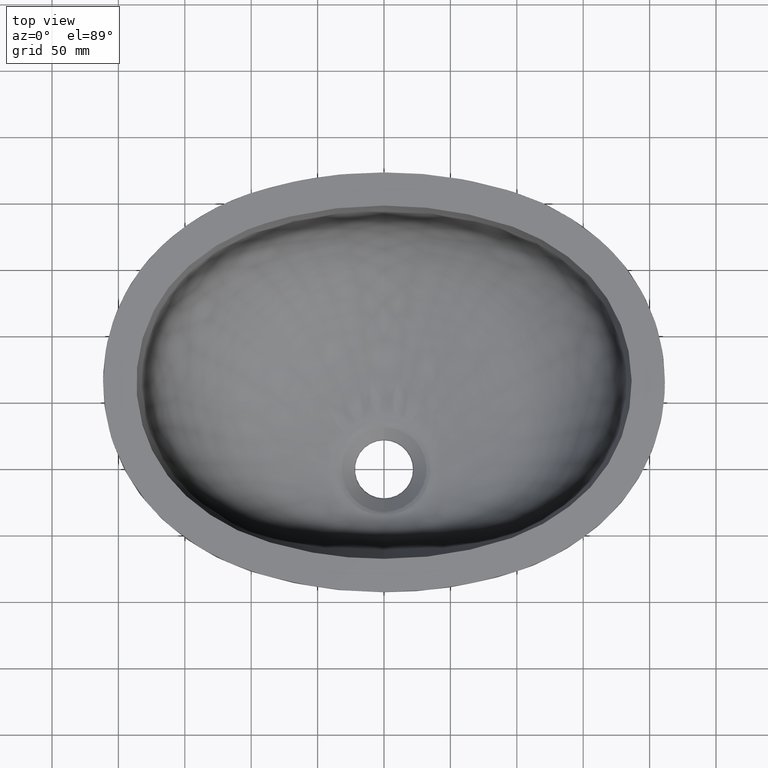
[diagram: clean part render]
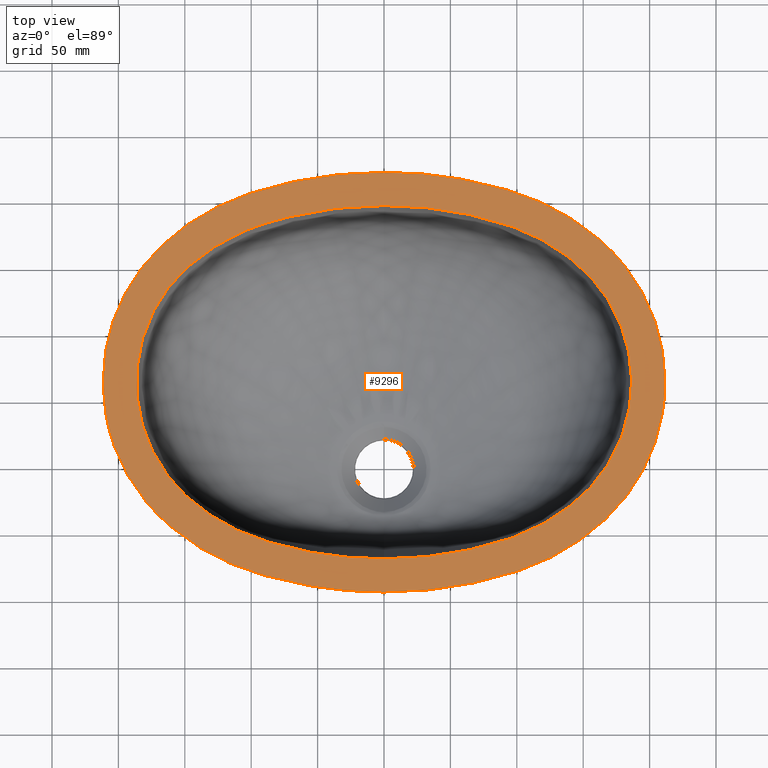
[diagram: same view with one face highlighted and labeled with its STEP entity id]
A machine part, top view. The second image highlights one B-rep face of the part: STEP entity #9296.
In plain terms, the highlighted planar face has unit normal (0, 0, -1).
Its self-contained STEP definition (entity closure, byte-faithful):
#14 = CARTESIAN_POINT ( 'NONE',  ( 141.8134164194811100, 185.6934564959157400, 139.0000000000000000 ) ) ;
#25 = CARTESIAN_POINT ( 'NONE',  ( -141.0980006799006200, 186.1517024431765600, 139.0000000000000000 ) ) ;
#44 = CARTESIAN_POINT ( 'NONE',  ( -235.5397353722347900, 63.46720191600246600, 139.0000000000000000 ) ) ;
#52 = CARTESIAN_POINT ( 'NONE',  ( 113.8014037228477500, 200.3979942582082900, 139.0000000000000600 ) ) ;
#63 = CARTESIAN_POINT ( 'NONE',  ( -51.80421030263410400, 217.1405875236715700, 139.0000000000000300 ) ) ;
#137 = CARTESIAN_POINT ( 'NONE',  ( -108.2375812038779100, 202.5971811981956400, 138.9999999999999400 ) ) ;
#177 = ORIENTED_EDGE ( 'NONE', *, *, #8405, .T. ) ;
#207 = CARTESIAN_POINT ( 'NONE',  ( 108.8211774104020600, 202.3740298353033600, 139.0000000000000000 ) ) ;
#216 = CARTESIAN_POINT ( 'NONE',  ( -207.0094311776198300, 27.74783621377445900, 139.0000000000000000 ) ) ;
#252 = CARTESIAN_POINT ( 'NONE',  ( -189.7697833938073900, 138.5806716896760800, 138.9999999999999400 ) ) ;
#270 = CARTESIAN_POINT ( 'NONE',  ( 104.5709587466795100, -51.11716522922829100, 138.9999999999999400 ) ) ;
#285 = CARTESIAN_POINT ( 'NONE',  ( -146.4548949164134500, -56.53928594062419700, 139.0000000000000300 ) ) ;
#304 = CARTESIAN_POINT ( 'NONE',  ( 184.6311295948306100, 42.23830943594445800, 139.0000000000000300 ) ) ;
#320 = CARTESIAN_POINT ( 'NONE',  ( -210.9582475368949000, 48.28391470857069800, 139.0000000000000300 ) ) ;
#328 = CARTESIAN_POINT ( 'NONE',  ( -167.8413683892211700, 126.4645927509965600, 139.0000000000000300 ) ) ;
#340 = CARTESIAN_POINT ( 'NONE',  ( 91.98169013250493700, -55.77286515180630700, 139.0000000000000300 ) ) ;
#354 = CARTESIAN_POINT ( 'NONE',  ( -118.6613527595336600, -72.26575017416591600, 139.0000000000000000 ) ) ;
#362 = CARTESIAN_POINT ( 'NONE',  ( -84.06807760853958200, 184.2397239878616500, 138.9999999999999700 ) ) ;
#374 = CARTESIAN_POINT ( 'NONE',  ( 141.1838978360408700, -29.32937752605776900, 139.0000000000000300 ) ) ;
#389 = CARTESIAN_POINT ( 'NONE',  ( -103.6298229623216100, -78.31321714575936700, 139.0000000000000000 ) ) ;
#397 = CARTESIAN_POINT ( 'NONE',  ( -91.75725502482508500, 181.8817257741589200, 138.9999999999999400 ) ) ;
#411 = CARTESIAN_POINT ( 'NONE',  ( 53.29197455235970400, -65.61500751463303500, 139.0000000000000000 ) ) ;
#426 = CARTESIAN_POINT ( 'NONE',  ( -74.12893359391938500, -86.64713934944570900, 139.0000000000000000 ) ) ;
#433 = CARTESIAN_POINT ( 'NONE',  ( -118.6950777516234200, 170.4574448304686900, 139.0000000000000000 ) ) ;
#446 = CARTESIAN_POINT ( 'NONE',  ( 100.2468486844240100, 178.8943053326980000, 138.9999999999999400 ) ) ;
#467 = CARTESIAN_POINT ( 'NONE',  ( -73.99341860991832200, -61.00047033267231500, 139.0000000000000300 ) ) ;
#502 = CARTESIAN_POINT ( 'NONE',  ( -163.4702581478323100, -6.598483293071597100, 139.0000000000000000 ) ) ;
#513 = CARTESIAN_POINT ( 'NONE',  ( 42.39715067249979100, 193.3514921600761300, 139.0000000000000000 ) ) ;
#535 = CARTESIAN_POINT ( 'NONE',  ( -184.5471081795159900, 84.57808323815329700, 139.0000000000000000 ) ) ;
#547 = CARTESIAN_POINT ( 'NONE',  ( 177.6792728316464400, 107.7721870648342400, 139.0000000000000900 ) ) ;
#570 = CARTESIAN_POINT ( 'NONE',  ( -182.7736774008190300, 92.45975015035718100, 139.0000000000000300 ) ) ;
#607 = CARTESIAN_POINT ( 'NONE',  ( -96.88541963945579000, -54.12082279872024800, 139.0000000000000600 ) ) ;
#634 = CARTESIAN_POINT ( 'NONE',  ( 113.9440679903746200, -74.38510314623799500, 138.9999999999999700 ) ) ;
#667 = CARTESIAN_POINT ( 'NONE',  ( 62.28097968953528600, -89.20378139231240800, 139.0000000000000600 ) ) ;
#705 = CARTESIAN_POINT ( 'NONE',  ( 108.1219301276107000, -76.59439646301274300, 139.0000000000000300 ) ) ;
#743 = CARTESIAN_POINT ( 'NONE',  ( 198.0388837846426500, 123.6465736449599400, 139.0000000000000600 ) ) ;
#775 = CARTESIAN_POINT ( 'NONE',  ( -0.1188837530130837100, -94.99972735600290700, 139.0000000000000000 ) ) ;
#782 = CARTESIAN_POINT ( 'NONE',  ( 192.0718588196502900, -8.553439690658825300, 139.0000000000000000 ) ) ;
#824 = CARTESIAN_POINT ( 'NONE',  ( 142.0748136758999700, 185.5253491278705000, 139.0000000000000000 ) ) ;
#867 = CARTESIAN_POINT ( 'NONE',  ( 136.5500623196737700, 189.0714910554585500, 139.0000000000000600 ) ) ;
#879 = CARTESIAN_POINT ( 'NONE',  ( -141.1168040537991400, 186.1397481332255400, 139.0000000000000000 ) ) ;
#908 = CARTESIAN_POINT ( 'NONE',  ( 109.4075489926839600, 202.1489537408108700, 139.0000000000000000 ) ) ;
#918 = CARTESIAN_POINT ( 'NONE',  ( -72.53969795962767400, 213.0288973423084000, 139.0000000000000300 ) ) ;
#997 = CARTESIAN_POINT ( 'NONE',  ( -72.70368240779026800, 212.9915109307170600, 139.0000000000000300 ) ) ;
#1036 = CARTESIAN_POINT ( 'NONE',  ( -70.24295181148637800, 213.5444462426563600, 139.0000000000000600 ) ) ;
#1063 = CARTESIAN_POINT ( 'NONE',  ( 73.47070068155795800, 212.8144068011342800, 139.0000000000000000 ) ) ;
#1072 = CARTESIAN_POINT ( 'NONE',  ( -211.5281927797617200, 57.49456902823280300, 138.9999999999999700 ) ) ;
#1109 = CARTESIAN_POINT ( 'NONE',  ( -195.4557362358486300, -2.471038818008123500, 139.0000000000000000 ) ) ;
#1127 = CARTESIAN_POINT ( 'NONE',  ( 174.6940786597514500, 11.83100755372427300, 138.9999999999999700 ) ) ;
#1142 = CARTESIAN_POINT ( 'NONE',  ( -144.0680575306717500, -58.13872312545209600, 139.0000000000000300 ) ) ;
#1162 = CARTESIAN_POINT ( 'NONE',  ( 119.0263205636749100, -44.20435573573118400, 139.0000000000000600 ) ) ;
#1179 = CARTESIAN_POINT ( 'NONE',  ( -136.4407034738154000, -63.05786148650580000, 139.0000000000000300 ) ) ;
#1199 = CARTESIAN_POINT ( 'NONE',  ( 155.9633152650579300, -15.66304016418433200, 138.9999999999999100 ) ) ;
#1213 = CARTESIAN_POINT ( 'NONE',  ( -209.2375757382501400, 37.61254496227824300, 139.0000000000000300 ) ) ;
#1236 = CARTESIAN_POINT ( 'NONE',  ( 74.05922122272129100, -60.98408998442258900, 138.9999999999999700 ) ) ;
#1250 = CARTESIAN_POINT ( 'NONE',  ( -24.90366221126545200, -95.09938588293491100, 139.0000000000000300 ) ) ;
#1260 = CARTESIAN_POINT ( 'NONE',  ( -93.03478550490092400, 181.4675216411163800, 138.9999999999999400 ) ) ;
#1265 = VERTEX_POINT ( 'NONE', #7398 ) ;
#1274 = CARTESIAN_POINT ( 'NONE',  ( 158.6359490631300600, -12.63371528307698800, 138.9999999999999400 ) ) ;
#1296 = CARTESIAN_POINT ( 'NONE',  ( -145.0289637044683700, 152.2968570326403000, 139.0000000000000000 ) ) ;
#1327 = CARTESIAN_POINT ( 'NONE',  ( -170.7962503916104700, 4.531995507249366300, 138.9999999999999400 ) ) ;
#1361 = CARTESIAN_POINT ( 'NONE',  ( -186.1446360507280200, 54.00846418021065900, 139.0000000000000300 ) ) ;
#1373 = CARTESIAN_POINT ( 'NONE',  ( 178.6711741707339600, 105.2948297099821100, 139.0000000000000000 ) ) ;
#1395 = CARTESIAN_POINT ( 'NONE',  ( -45.30387493930094700, -66.74320426518950500, 138.9999999999999700 ) ) ;
#1405 = CARTESIAN_POINT ( 'NONE',  ( 73.50202094460138400, 187.1417626142833800, 139.0000000000000000 ) ) ;
#1430 = CARTESIAN_POINT ( 'NONE',  ( -182.8828827894482500, 34.18203254715999200, 139.0000000000000000 ) ) ;
#1465 = CARTESIAN_POINT ( 'NONE',  ( -91.84308975087570600, -55.81766508663380200, 139.0000000000000000 ) ) ;
#1531 = CARTESIAN_POINT ( 'NONE',  ( 131.8720091975062300, -65.61819252179728300, 139.0000000000000000 ) ) ;
#1568 = CARTESIAN_POINT ( 'NONE',  ( 194.2560816150226200, 130.9238229521491000, 139.0000000000000000 ) ) ;
#1606 = CARTESIAN_POINT ( 'NONE',  ( 192.9576453939305600, 133.2410313029964800, 138.9999999999999700 ) ) ;
#1648 = CARTESIAN_POINT ( 'NONE',  ( 193.2496586378289600, 132.7270176540466200, 139.0000000000000000 ) ) ;
#1692 = CARTESIAN_POINT ( 'NONE',  ( 141.9223819078338500, 185.6234413964040500, 139.0000000000000300 ) ) ;
#1732 = CARTESIAN_POINT ( 'NONE',  ( 186.9126671654065900, -16.79176412905602300, 139.0000000000000300 ) ) ;
#1743 = CARTESIAN_POINT ( 'NONE',  ( -152.3115399145576700, 179.0192908244592000, 139.0000000000000300 ) ) ;
#1761 = DIRECTION ( 'NONE',  ( 0.0000000000000000000, 0.0000000000000000000, -1.000000000000000000 ) ) ;
#1772 = CARTESIAN_POINT ( 'NONE',  ( 79.26839955016328100, 211.4356054717812600, 139.0000000000000000 ) ) ;
#1851 = CARTESIAN_POINT ( 'NONE',  ( 73.82754188232698300, 212.7319390019204700, 139.0000000000000300 ) ) ;
#1861 = CARTESIAN_POINT ( 'NONE',  ( -131.9177499660897300, 191.6667040939770500, 139.0000000000000000 ) ) ;
#1901 = CARTESIAN_POINT ( 'NONE',  ( -106.0409200848411200, 203.4148802628084000, 139.0000000000000300 ) ) ;
#1939 = CARTESIAN_POINT ( 'NONE',  ( -198.7458515799184500, 123.2689569175014600, 139.0000000000000000 ) ) ;
#1974 = CARTESIAN_POINT ( 'NONE',  ( -193.1775097497337300, -6.631718725959243200, 139.0000000000000000 ) ) ;
#1993 = CARTESIAN_POINT ( 'NONE',  ( 151.3085382365438200, -20.50219906965497100, 139.0000000000000300 ) ) ;
#2009 = CARTESIAN_POINT ( 'NONE',  ( -142.2543813698570400, -59.32407036126976900, 139.0000000000000000 ) ) ;
#2010 = CARTESIAN_POINT ( 'NONE',  ( -21.38966880281606100, -69.52556449965523200, 139.0000000000000300 ) ) ;
#2030 = CARTESIAN_POINT ( 'NONE',  ( 170.9413716218347800, 4.784001681605743400, 138.9999999999999400 ) ) ;
#2049 = CARTESIAN_POINT ( 'NONE',  ( -109.9174009370858200, -75.90249199023436700, 139.0000000000000300 ) ) ;
#2071 = CARTESIAN_POINT ( 'NONE',  ( 168.1870202381033700, 0.2372579713417331300, 138.9999999999999700 ) ) ;
#2094 = CARTESIAN_POINT ( 'NONE',  ( -138.8137280736534100, 157.3090118539278700, 139.0000000000000300 ) ) ;
#2109 = CARTESIAN_POINT ( 'NONE',  ( 128.1818252495919800, -38.76134351709494300, 138.9999999999999700 ) ) ;
#2132 = CARTESIAN_POINT ( 'NONE',  ( -73.76859093727253500, 187.0750862769899400, 139.0000000000000000 ) ) ;
#2145 = CARTESIAN_POINT ( 'NONE',  ( 95.78712771062819800, -54.49272838585474700, 139.0000000000000300 ) ) ;
#2165 = CARTESIAN_POINT ( 'NONE',  ( -174.5475202040333600, 114.8975302568113400, 139.0000000000000000 ) ) ;
#2175 = CARTESIAN_POINT ( 'NONE',  ( 92.66805819948609700, 181.5877388763120700, 138.9999999999999700 ) ) ;
#2195 = CARTESIAN_POINT ( 'NONE',  ( -128.0782598144020600, -38.82807102709510600, 139.0000000000000300 ) ) ;
#2207 = CARTESIAN_POINT ( 'NONE',  ( 132.0405714542378100, 162.1896205235121300, 138.9999999999999700 ) ) ;
#2231 = CARTESIAN_POINT ( 'NONE',  ( -115.3098891924413600, -46.08253377338385800, 139.0000000000000300 ) ) ;
#2242 = CARTESIAN_POINT ( 'NONE',  ( 96.47228922216452000, 180.2913689797402700, 139.0000000000001100 ) ) ;
#2260 = CARTESIAN_POINT ( 'NONE',  ( 51.74814090130514900, -91.14091268570716400, 139.0000000000000300 ) ) ;
#2265 = CARTESIAN_POINT ( 'NONE',  ( -178.9568716198372700, 21.46304654716212600, 139.0000000000000000 ) ) ;
#2274 = CARTESIAN_POINT ( 'NONE',  ( 156.4094260580834300, 141.5028861874327200, 139.0000000000000600 ) ) ;
#2300 = CARTESIAN_POINT ( 'NONE',  ( -161.8572172453305300, -8.716857020315695000, 138.9999999999999400 ) ) ;
#2310 = CARTESIAN_POINT ( 'NONE',  ( 95.20517934392562200, 180.7353678662675000, 139.0000000000000600 ) ) ;
#2330 = CARTESIAN_POINT ( 'NONE',  ( 72.69298921007160200, -86.97944799576367800, 138.9999999999999700 ) ) ;
#2336 = CARTESIAN_POINT ( 'NONE',  ( -183.5069824529764400, 36.77404763320035400, 139.0000000000000600 ) ) ;
#2365 = CARTESIAN_POINT ( 'NONE',  ( 122.3969999659973000, -70.67609360732196000, 139.0000000000000000 ) ) ;
#2438 = CARTESIAN_POINT ( 'NONE',  ( 211.3782022415880700, 56.26085926813054500, 138.9999999999999700 ) ) ;
#2475 = CARTESIAN_POINT ( 'NONE',  ( 138.8090652973653800, -61.50507526822514100, 138.9999999999999700 ) ) ;
#2514 = CARTESIAN_POINT ( 'NONE',  ( 192.9332251142113300, 133.2838429884094800, 139.0000000000000300 ) ) ;
#2554 = CARTESIAN_POINT ( 'NONE',  ( 136.5128276282478900, -62.90656115650432400, 139.0000000000000300 ) ) ;
#2565 = CARTESIAN_POINT ( 'NONE',  ( -108.2079264718014000, 202.6083978537575400, 139.0000000000000300 ) ) ;
#2567 = CARTESIAN_POINT ( 'NONE',  ( 0.0000000000000000000, 196.0000008540420100, 139.0000000000000300 ) ) ;
#2591 = CARTESIAN_POINT ( 'NONE',  ( 192.9942577413563400, 133.1768089779648400, 139.0000000000000000 ) ) ;
#2603 = CARTESIAN_POINT ( 'NONE',  ( -180.9164072758659900, 151.3534113002283700, 139.0000000000000000 ) ) ;
#2682 = CARTESIAN_POINT ( 'NONE',  ( -30.59036188713667700, 220.1005314709144600, 138.9999999999999700 ) ) ;
#2691 = CARTESIAN_POINT ( 'NONE',  ( -42.65920963312476000, -67.12821973084807300, 139.0000000000001100 ) ) ;
#2721 = CARTESIAN_POINT ( 'NONE',  ( -108.0001069949350100, 202.6868622311145300, 138.9999999999999700 ) ) ;
#2760 = CARTESIAN_POINT ( 'NONE',  ( -211.4956472953980200, 65.04136533440396300, 139.0000000000000300 ) ) ;
#2787 = CARTESIAN_POINT ( 'NONE',  ( 74.92895335739223100, 212.4754631112370200, 139.0000000000000000 ) ) ;
#2796 = CARTESIAN_POINT ( 'NONE',  ( -193.5106916179094300, -6.040530563397850500, 139.0000000000000300 ) ) ;
#2832 = CARTESIAN_POINT ( 'NONE',  ( -192.9379371505323500, -7.053339934280552700, 139.0000000000000300 ) ) ;
#2852 = CARTESIAN_POINT ( 'NONE',  ( 177.4286187307318700, 17.93872547202632400, 139.0000000000000600 ) ) ;
#2867 = CARTESIAN_POINT ( 'NONE',  ( -160.0223793425924700, -46.48728194195344800, 139.0000000000000300 ) ) ;
#2888 = CARTESIAN_POINT ( 'NONE',  ( 180.7286447669209200, 26.75148982079988300, 138.9999999999999700 ) ) ;
#2904 = CARTESIAN_POINT ( 'NONE',  ( -211.1235189335354200, 74.60478928825013200, 139.0000000000000000 ) ) ;
#2911 = CARTESIAN_POINT ( 'NONE',  ( -104.3286676793721900, 177.3482795601659600, 139.0000000000000000 ) ) ;
#2924 = CARTESIAN_POINT ( 'NONE',  ( 97.05055388817118000, -54.04248067702812400, 139.0000000000000000 ) ) ;
#2938 = CARTESIAN_POINT ( 'NONE',  ( -84.79865486224963400, -84.01825868442261900, 139.0000000000000000 ) ) ;
#2946 = CARTESIAN_POINT ( 'NONE',  ( -140.9171380674395900, 155.6699018295852300, 139.0000000000000000 ) ) ;
#2960 = CARTESIAN_POINT ( 'NONE',  ( 81.76717946623549000, -58.87600082411864800, 139.0000000000000000 ) ) ;
#2976 = CARTESIAN_POINT ( 'NONE',  ( -73.40601892529323900, -86.81464754827631200, 138.9999999999999700 ) ) ;
#2984 = CARTESIAN_POINT ( 'NONE',  ( -53.00564993577873500, 191.6747825395408100, 138.9999999999999400 ) ) ;
#2997 = CARTESIAN_POINT ( 'NONE',  ( 186.5114384763912500, 62.19996318540529500, 138.9999999999999400 ) ) ;
#3031 = CARTESIAN_POINT ( 'NONE',  ( 140.6878480459430100, 155.8515120863594100, 139.0000000000000600 ) ) ;
#3054 = CARTESIAN_POINT ( 'NONE',  ( -145.1516036905644300, -26.07893530553518200, 139.0000000000000000 ) ) ;
#3064 = CARTESIAN_POINT ( 'NONE',  ( 134.2404269465162100, 160.6577020109701600, 139.0000000000000300 ) ) ;
#3080 = CARTESIAN_POINT ( 'NONE',  ( -74.86068015427235900, -86.47628916814319700, 139.0000000000000000 ) ) ;
#3086 = CARTESIAN_POINT ( 'NONE',  ( -185.7585760016749000, 49.99475112558349100, 138.9999999999999400 ) ) ;
#3097 = CARTESIAN_POINT ( 'NONE',  ( 166.3093214867110700, 128.8120420384912300, 139.0000000000000000 ) ) ;
#3115 = CARTESIAN_POINT ( 'NONE',  ( 72.61115483603460100, -86.99813872742137700, 139.0000000000000600 ) ) ;
#3120 = CARTESIAN_POINT ( 'NONE',  ( -186.5117065906350700, 60.68572537454398500, 138.9999999999999700 ) ) ;
#3131 = CARTESIAN_POINT ( 'NONE',  ( 113.7100026681073400, 173.0566344083987600, 139.0000000000000600 ) ) ;
#3157 = CARTESIAN_POINT ( 'NONE',  ( -141.0265227954950500, -29.47622188624190200, 139.0000000000000000 ) ) ;
#3168 = CARTESIAN_POINT ( 'NONE',  ( 52.83461749593728000, 191.7031703080290000, 139.0000000000000600 ) ) ;
#3187 = CARTESIAN_POINT ( 'NONE',  ( 72.75144088925955500, -86.96608613697031800, 139.0000000000000000 ) ) ;
#3193 = CARTESIAN_POINT ( 'NONE',  ( -185.0478304791206800, 44.64929593192085400, 139.0000000000000300 ) ) ;
#3233 = EDGE_CURVE ( 'NONE', #10656, #7843, #8831, .T. ) ;
#3259 = CARTESIAN_POINT ( 'NONE',  ( 79.51301526927730400, -85.41938144824875700, 139.0000000000000000 ) ) ;
#3298 = CARTESIAN_POINT ( 'NONE',  ( 108.8550291227633000, 202.3610909174799700, 138.9999999999999700 ) ) ;
#3335 = CARTESIAN_POINT ( 'NONE',  ( 140.9471529962679000, -60.16353036564684200, 139.0000000000000600 ) ) ;
#3375 = CARTESIAN_POINT ( 'NONE',  ( 141.0673915609370100, -60.08702585227214100, 139.0000000000000000 ) ) ;
#3419 = CARTESIAN_POINT ( 'NONE',  ( 152.2492737875238600, -52.96490522261004900, 138.9999999999999700 ) ) ;
#3457 = CARTESIAN_POINT ( 'NONE',  ( 189.7266493476861300, -12.43559542303224000, 138.9999999999999700 ) ) ;
#3468 = CARTESIAN_POINT ( 'NONE',  ( -12.21369047708627400, 221.0605769537095900, 139.0000000000000000 ) ) ;
#3497 = CARTESIAN_POINT ( 'NONE',  ( 73.64332969488239700, 212.7745493190662100, 138.9999999999999700 ) ) ;
#3508 = CARTESIAN_POINT ( 'NONE',  ( -136.5584991261696900, 188.9580415771684700, 139.0000000000000000 ) ) ;
#3535 = CARTESIAN_POINT ( 'NONE',  ( 24.91480145026364600, 221.1030691178173400, 139.0000000000000300 ) ) ;
#3545 = CARTESIAN_POINT ( 'NONE',  ( -79.61220368101231800, 211.4116289331660400, 139.0000000000000000 ) ) ;
#3573 = CARTESIAN_POINT ( 'NONE',  ( 74.19541459298753200, 212.6466020836562100, 138.9999999999999700 ) ) ;
#3583 = CARTESIAN_POINT ( 'NONE',  ( -72.21170152404928900, 213.1034455694359100, 139.0000000000000300 ) ) ;
#3606 = CARTESIAN_POINT ( 'NONE',  ( 5.367609505420313500, -70.02552600264243700, 139.0000000018628400 ) ) ;
#3623 = CARTESIAN_POINT ( 'NONE',  ( -108.7313689486280700, -76.36095442741266500, 139.0000000000000300 ) ) ;
#3650 = CARTESIAN_POINT ( 'NONE',  ( 84.88956409077458400, 210.0143984726655600, 139.0000000000000000 ) ) ;
#3662 = CARTESIAN_POINT ( 'NONE',  ( -192.4216142408085400, 134.1742085366064100, 139.0000000000000000 ) ) ;
#3697 = CARTESIAN_POINT ( 'NONE',  ( -202.3094017170759300, 12.19028993534286100, 139.0000000000000600 ) ) ;
#3717 = CARTESIAN_POINT ( 'NONE',  ( 185.0810060096673300, 44.86057128956854000, 139.0000000000000900 ) ) ;
#3732 = CARTESIAN_POINT ( 'NONE',  ( -211.5051657339976100, 63.86039025129962000, 139.0000000000000300 ) ) ;
#3739 = CARTESIAN_POINT ( 'NONE',  ( -89.19747876048626300, 182.6891687456241300, 138.9999999999999400 ) ) ;
#3751 = CARTESIAN_POINT ( 'NONE',  ( 84.32890320989497500, -58.13792604401047000, 139.0000000000000900 ) ) ;
#3765 = CARTESIAN_POINT ( 'NONE',  ( -186.9335923822120300, -17.55703612093498800, 138.9999999999999700 ) ) ;
#3772 = FACE_BOUND ( 'NONE', #5119, .T. ) ;
#3788 = CARTESIAN_POINT ( 'NONE',  ( 153.2094150633927800, -18.60731548805274500, 138.9999999999999400 ) ) ;
#3827 = CARTESIAN_POINT ( 'NONE',  ( 42.77214475902973600, -67.29605679174895300, 139.0000000000000300 ) ) ;
#3843 = CARTESIAN_POINT ( 'NONE',  ( -73.42055674649238000, -86.81129133590420100, 139.0000000000000300 ) ) ;
#3851 = CARTESIAN_POINT ( 'NONE',  ( -161.6177312624240600, 135.2071256801437500, 138.9999999999999700 ) ) ;
#3864 = CARTESIAN_POINT ( 'NONE',  ( 186.3903603036019700, 68.88559975299638400, 139.0000000000000000 ) ) ;
#3884 = CARTESIAN_POINT ( 'NONE',  ( -99.37836469753374000, 179.3188853272836500, 138.9999999999999700 ) ) ;
#3895 = CARTESIAN_POINT ( 'NONE',  ( 181.6829084687458100, 96.39160409983634300, 138.9999999999999700 ) ) ;
#3913 = CARTESIAN_POINT ( 'NONE',  ( -108.6748031276207900, -76.38261760352770600, 139.0000000000000000 ) ) ;
#3919 = CARTESIAN_POINT ( 'NONE',  ( -175.7393803412036800, 14.08961639499166000, 139.0000000000000900 ) ) ;
#3931 = CARTESIAN_POINT ( 'NONE',  ( 81.19154212135910600, 185.0609711039418000, 139.0000000000000300 ) ) ;
#3955 = CARTESIAN_POINT ( 'NONE',  ( -184.5891725332469900, 42.00776425611572100, 139.0000000000000300 ) ) ;
#3965 = CARTESIAN_POINT ( 'NONE',  ( 88.85087964086139300, 182.7962294836796700, 138.9999999999999700 ) ) ;
#3985 = CARTESIAN_POINT ( 'NONE',  ( 103.6443475586870400, -78.23794962749582300, 139.0000000000000000 ) ) ;
#3990 = CARTESIAN_POINT ( 'NONE',  ( -185.5979651345212200, 48.65285253113724900, 138.9999999999999700 ) ) ;
#3999 = CARTESIAN_POINT ( 'NONE',  ( 21.33813949721317000, 195.5263009155854900, 138.9999999999999700 ) ) ;
#4022 = CARTESIAN_POINT ( 'NONE',  ( -153.0317510307910100, -18.75477830283106300, 138.9999999999999400 ) ) ;
#4051 = CARTESIAN_POINT ( 'NONE',  ( 105.9258784293651400, -77.41384179009529000, 139.0000000000000300 ) ) ;
#4058 = CARTESIAN_POINT ( 'NONE',  ( -118.8669679647205000, -44.21368983730952400, 139.0000000000000300 ) ) ;
#4162 = CARTESIAN_POINT ( 'NONE',  ( 211.5642371943222900, 75.18259462622813800, 139.0000000000000300 ) ) ;
#4199 = CARTESIAN_POINT ( 'NONE',  ( 141.0486137448797900, -60.09898040169552800, 139.0000000000000000 ) ) ;
#4240 = CARTESIAN_POINT ( 'NONE',  ( 176.2236973615434300, 157.8998897483864700, 139.0000000000000300 ) ) ;
#4277 = CARTESIAN_POINT ( 'NONE',  ( 193.5878317384397700, 132.1266690922985800, 139.0000000000000000 ) ) ;
#4316 = CARTESIAN_POINT ( 'NONE',  ( 144.1940453219160100, 184.1432708180525100, 139.0000000000000300 ) ) ;
#4347 = DIRECTION ( 'NONE',  ( -1.000000000000000000, 0.0000000000000000000, 0.0000000000000000000 ) ) ;
#4404 = CARTESIAN_POINT ( 'NONE',  ( -107.7223840862311200, 202.7913421700536400, 139.0000000000000000 ) ) ;
#4441 = CARTESIAN_POINT ( 'NONE',  ( -140.8541442510609400, 186.3064974270223200, 139.0000000000000300 ) ) ;
#4473 = CARTESIAN_POINT ( 'NONE',  ( 76.38720425853608700, 212.1313246228356500, 139.0000000000000000 ) ) ;
#4483 = CARTESIAN_POINT ( 'NONE',  ( -197.9050048167962400, 2.347917562568041300, 138.9999999999999700 ) ) ;
#4496 = EDGE_LOOP ( 'NONE', ( #177, #9152 ) ) ;
#4521 = CARTESIAN_POINT ( 'NONE',  ( -191.7813540484060900, 135.2678563378338800, 139.0000000000000000 ) ) ;
#4540 = CARTESIAN_POINT ( 'NONE',  ( 186.0043530012417000, 74.19460520189832700, 139.0000000000000300 ) ) ;
#4557 = CARTESIAN_POINT ( 'NONE',  ( -211.5040733581953400, 64.05735570543994600, 139.0000000000000000 ) ) ;
#4558 = CARTESIAN_POINT ( 'NONE',  ( -10.71252021551523700, -70.05094320876580100, 139.0000000000000000 ) ) ;
#4576 = CARTESIAN_POINT ( 'NONE',  ( 88.16010313617989900, -56.97778269341321800, 139.0000000000000900 ) ) ;
#4591 = CARTESIAN_POINT ( 'NONE',  ( -141.7978085633798200, -59.61850127922370700, 138.9999999999999400 ) ) ;
#4598 = CARTESIAN_POINT ( 'NONE',  ( -125.5749207283905500, 166.3990296660392100, 139.0000000000000000 ) ) ;
#4610 = CARTESIAN_POINT ( 'NONE',  ( 99.56975213004240300, -53.10633465872341900, 138.9999999999999700 ) ) ;
#4626 = CARTESIAN_POINT ( 'NONE',  ( -109.2852905184045100, -76.14784606021426300, 139.0000000000000000 ) ) ;
#4646 = CARTESIAN_POINT ( 'NONE',  ( 162.0445270725375300, -8.476627306955640200, 139.0000000000000000 ) ) ;
#4680 = CARTESIAN_POINT ( 'NONE',  ( 166.7284983767509900, -1.987392444822726000, 139.0000000000000300 ) ) ;
#4703 = CARTESIAN_POINT ( 'NONE',  ( -163.2447450979335900, 133.0924700520680200, 139.0000000000000900 ) ) ;
#4717 = CARTESIAN_POINT ( 'NONE',  ( 163.1579999484959800, 133.1691763312871000, 139.0000000000000000 ) ) ;
#4740 = CARTESIAN_POINT ( 'NONE',  ( -89.31006881186263500, -56.62159943563222700, 139.0000000000000300 ) ) ;
#4769 = CARTESIAN_POINT ( 'NONE',  ( -49.32879036149199700, -92.37193001119759100, 139.0000000000000300 ) ) ;
#4775 = CARTESIAN_POINT ( 'NONE',  ( -173.9801902636685300, 10.44628832041369500, 138.9999999999999700 ) ) ;
#4784 = CARTESIAN_POINT ( 'NONE',  ( 163.9627951109331400, 132.0864586901871900, 139.0000000000000000 ) ) ;
#4808 = CARTESIAN_POINT ( 'NONE',  ( -88.04110122622786600, -57.01434686738181100, 139.0000000000000900 ) ) ;
#4818 = CARTESIAN_POINT ( 'NONE',  ( 138.5751726090029500, 157.4913558980957800, 139.0000000000000600 ) ) ;
#4837 = CARTESIAN_POINT ( 'NONE',  ( 108.1501544987366800, -76.58369114157211800, 139.0000000000000000 ) ) ;
#4842 = CARTESIAN_POINT ( 'NONE',  ( -185.7472390811117000, 76.63815407784528600, 139.0000000000000000 ) ) ;
#4852 = CARTESIAN_POINT ( 'NONE',  ( 10.71661103376155600, 196.0528846486914700, 138.9999999999999700 ) ) ;
#4870 = CARTESIAN_POINT ( 'NONE',  ( -0.1188837530130837100, -94.99972735600290700, 139.0000000000000000 ) ) ;
#4876 = CARTESIAN_POINT ( 'NONE',  ( -185.0080719962218700, 81.93414284788167400, 138.9999999999999400 ) ) ;
#4941 = CARTESIAN_POINT ( 'NONE',  ( 98.94340394845026800, -79.85517962919045900, 139.0000000000000000 ) ) ;
#4981 = CARTESIAN_POINT ( 'NONE',  ( 72.12009860751362600, -87.10989101887942400, 139.0000000000000300 ) ) ;
#5019 = CARTESIAN_POINT ( 'NONE',  ( 108.9340052678357200, 202.3308772086857900, 138.9999999999999700 ) ) ;
#5054 = CARTESIAN_POINT ( 'NONE',  ( 192.3515192213733900, -8.073550011484908100, 139.0000000000000000 ) ) ;
#5097 = CARTESIAN_POINT ( 'NONE',  ( 151.2500595074510600, 179.2801986422998100, 139.0000000000000300 ) ) ;
#5119 = EDGE_LOOP ( 'NONE', ( #9470, #7831 ) ) ;
#5139 = CARTESIAN_POINT ( 'NONE',  ( 141.8570086609882400, 185.6654540424581200, 139.0000000000000300 ) ) ;
#5151 = CARTESIAN_POINT ( 'NONE',  ( -72.84423321159174200, 212.9594059438503800, 139.0000000000000300 ) ) ;
#5176 = CARTESIAN_POINT ( 'NONE',  ( 211.4905932709994300, 59.38909906900171600, 138.9999999999999700 ) ) ;
#5186 = CARTESIAN_POINT ( 'NONE',  ( -103.7586306185425800, 204.2373536107996000, 139.0000000000000300 ) ) ;
#5244 = FACE_OUTER_BOUND ( 'NONE', #4496, .T. ) ;
#5262 = CARTESIAN_POINT ( 'NONE',  ( -108.1386983323375000, 202.6345625912720200, 139.0000000000000000 ) ) ;
#5340 = CARTESIAN_POINT ( 'NONE',  ( -113.6889446413553500, -74.39001060308507400, 139.0000000000000000 ) ) ;
#5376 = CARTESIAN_POINT ( 'NONE',  ( -210.0556708274427300, 85.35717303577860100, 139.0000000000000000 ) ) ;
#5395 = CARTESIAN_POINT ( 'NONE',  ( 184.6096357833321000, 84.72754064352051300, 138.9999999999999400 ) ) ;
#5410 = CARTESIAN_POINT ( 'NONE',  ( -192.8898801609365700, -7.137605226466015500, 139.0000000000000000 ) ) ;
#5418 = CARTESIAN_POINT ( 'NONE',  ( -182.4308484307374800, 93.75433868550551600, 139.0000000000000000 ) ) ;
#5430 = CARTESIAN_POINT ( 'NONE',  ( 26.80896202250706800, -68.96323041864968700, 139.0000000000000600 ) ) ;
#5443 = CARTESIAN_POINT ( 'NONE',  ( -211.4746140283301400, 66.41643093779680400, 139.0000000000000600 ) ) ;
#5450 = CARTESIAN_POINT ( 'NONE',  ( -156.5407818873769900, 141.3555344684623400, 138.9999999999999400 ) ) ;
#5462 = CARTESIAN_POINT ( 'NONE',  ( 181.5289102171387600, 29.30189568226201000, 139.0000000000000900 ) ) ;
#5475 = CARTESIAN_POINT ( 'NONE',  ( -108.9688581874957300, -76.26980243507434000, 139.0000000000000300 ) ) ;
#5496 = CARTESIAN_POINT ( 'NONE',  ( 186.4017692136580400, 58.16367267581966900, 138.9999999999999400 ) ) ;
#5536 = CARTESIAN_POINT ( 'NONE',  ( 114.3114078304648200, -46.68810567026685000, 139.0000000000000900 ) ) ;
#5552 = CARTESIAN_POINT ( 'NONE',  ( -95.45582107259211600, -81.05793139906083400, 139.0000000000000300 ) ) ;
#5559 = CARTESIAN_POINT ( 'NONE',  ( -166.3485184739990600, 128.7131727639855700, 139.0000000000000600 ) ) ;
#5590 = CARTESIAN_POINT ( 'NONE',  ( -183.4160199267559800, 89.85234657909390400, 139.0000000000000900 ) ) ;
#5600 = CARTESIAN_POINT ( 'NONE',  ( 171.9863987506012400, 119.7818002993197300, 139.0000000000000300 ) ) ;
#5623 = CARTESIAN_POINT ( 'NONE',  ( -138.9258527398916400, -31.11896964334835800, 138.9999999999999700 ) ) ;
#5634 = CARTESIAN_POINT ( 'NONE',  ( 135.3334951048921400, 159.8753747391082200, 139.0000000000000300 ) ) ;
#5646 = VERTEX_POINT ( 'NONE', #775 ) ;
#5659 = CARTESIAN_POINT ( 'NONE',  ( -58.44298194782781800, -64.50211324846293300, 139.0000000000000300 ) ) ;
#5670 = CARTESIAN_POINT ( 'NONE',  ( 91.39674574877575700, 181.9971534398095500, 138.9999999999999400 ) ) ;
#5695 = CARTESIAN_POINT ( 'NONE',  ( -158.4840923769219500, -12.84646489952830900, 138.9999999999999700 ) ) ;
#5729 = CARTESIAN_POINT ( 'NONE',  ( -104.3512931501887200, -51.20925861832996200, 138.9999999999999400 ) ) ;
#5758 = CARTESIAN_POINT ( 'NONE',  ( 108.1416918068158000, -76.58690146934989700, 139.0000000000000300 ) ) ;
#5795 = CARTESIAN_POINT ( 'NONE',  ( 108.0922827998651900, -76.60563787281249400, 139.0000000000000000 ) ) ;
#5834 = CARTESIAN_POINT ( 'NONE',  ( 71.46522367802218400, -87.25784847818835000, 139.0000000000000300 ) ) ;
#5873 = CARTESIAN_POINT ( 'NONE',  ( 202.4780944377958500, 113.7831146585950700, 139.0000000000000300 ) ) ;
#5914 = CARTESIAN_POINT ( 'NONE',  ( 210.9580505653745500, 50.05562026914027700, 138.9999999999999400 ) ) ;
#5957 = CARTESIAN_POINT ( 'NONE',  ( 142.3792539804064500, 185.3289135465079200, 139.0000000000000000 ) ) ;
#5997 = CARTESIAN_POINT ( 'NONE',  ( 141.7901986982732300, 185.7083638855682800, 139.0000000000000000 ) ) ;
#6035 = CARTESIAN_POINT ( 'NONE',  ( 111.2963556820358100, 201.4102676102805300, 139.0000000000000300 ) ) ;
#6046 = CARTESIAN_POINT ( 'NONE',  ( -72.82080850109547000, 212.9647602286047700, 139.0000000000000000 ) ) ;
#6074 = CARTESIAN_POINT ( 'NONE',  ( 73.55115464313125500, 212.7958399421424600, 139.0000000000000300 ) ) ;
#6086 = AXIS2_PLACEMENT_3D ( 'NONE', #44, #1761, #4347 ) ;
#6119 = EDGE_CURVE ( 'NONE', #7843, #10656, #10776, .T. ) ;
#6125 = CARTESIAN_POINT ( 'NONE',  ( -114.0311587794801500, 200.4041188613248000, 139.0000000000000000 ) ) ;
#6164 = CARTESIAN_POINT ( 'NONE',  ( -99.05575180784768500, 205.8517490758731600, 139.0000000000000000 ) ) ;
#6192 = CARTESIAN_POINT ( 'NONE',  ( 108.7986085370400700, 202.3826535995151200, 138.9999999999999700 ) ) ;
#6203 = CARTESIAN_POINT ( 'NONE',  ( -142.8611827683675100, -58.93030991626417900, 139.0000000000000300 ) ) ;
#6239 = CARTESIAN_POINT ( 'NONE',  ( -211.5056240419536400, 63.75973280557555300, 139.0000000000000000 ) ) ;
#6258 = CARTESIAN_POINT ( 'NONE',  ( 147.3756391272858700, -24.15471562945953100, 139.0000000000000300 ) ) ;
#6274 = CARTESIAN_POINT ( 'NONE',  ( -206.9118448028390800, 27.36926207612840400, 139.0000000000000000 ) ) ;
#6275 = CARTESIAN_POINT ( 'NONE',  ( -1.323079532162496300E-008, -70.00001002447250200, 139.0000747107351300 ) ) ;
#6294 = CARTESIAN_POINT ( 'NONE',  ( 145.3452485011681000, -25.91405622162038500, 138.9999999999999400 ) ) ;
#6309 = CARTESIAN_POINT ( 'NONE',  ( -141.6656678939643000, -59.70342321702201400, 139.0000000000000000 ) ) ;
#6316 = CARTESIAN_POINT ( 'NONE',  ( -168.5661832393860200, 125.3302841613534200, 139.0000000000000000 ) ) ;
#6330 = CARTESIAN_POINT ( 'NONE',  ( 93.25259777651149300, -55.35746390601104100, 139.0000000000000000 ) ) ;
#6345 = CARTESIAN_POINT ( 'NONE',  ( -192.2716358761253700, 134.4321755967979800, 139.0000000000000000 ) ) ;
#6367 = CARTESIAN_POINT ( 'NONE',  ( 21.45096354415177600, -69.37559834576670400, 139.0000000000000300 ) ) ;
#6382 = CARTESIAN_POINT ( 'NONE',  ( -79.18986408899719700, -85.43796249123107600, 139.0000000000000000 ) ) ;
#6404 = CARTESIAN_POINT ( 'NONE',  ( 132.6223999097359200, -35.80205125776861100, 138.9999999999999400 ) ) ;
#6436 = CARTESIAN_POINT ( 'NONE',  ( 180.0342817674743700, 101.5146371685331600, 139.0000000000000300 ) ) ;
#6458 = CARTESIAN_POINT ( 'NONE',  ( -183.7158844901056500, 88.53779271355368500, 138.9999999999999400 ) ) ;
#6469 = CARTESIAN_POINT ( 'NONE',  ( 174.4587758168692600, 115.0783611917447600, 139.0000000000000300 ) ) ;
#6494 = CARTESIAN_POINT ( 'NONE',  ( -156.7237834986264600, -14.85753517421316900, 138.9999999999999400 ) ) ;
#6527 = CARTESIAN_POINT ( 'NONE',  ( -53.20982178366045200, -65.48291040138448700, 139.0000000000000300 ) ) ;
#6537 = CARTESIAN_POINT ( 'NONE',  ( 87.57645308431369800, 183.1866655613613100, 139.0000000000000300 ) ) ;
#6562 = CARTESIAN_POINT ( 'NONE',  ( -186.4167038321047000, 58.01712008155119100, 139.0000000000000000 ) ) ;
#6563 = PLANE ( 'NONE',  #6086 ) ;
#6573 = CARTESIAN_POINT ( 'NONE',  ( 146.8418698202678200, 150.7401703732416500, 138.9999999999999700 ) ) ;
#6600 = CARTESIAN_POINT ( 'NONE',  ( -93.10691677748759800, -55.40562893212717900, 138.9999999999999700 ) ) ;
#6627 = CARTESIAN_POINT ( 'NONE',  ( 70.15501681973619000, -87.55017849634344900, 139.0000000000000000 ) ) ;
#6662 = CARTESIAN_POINT ( 'NONE',  ( 12.20834032507777800, -95.05834849508630700, 139.0000000000000000 ) ) ;
#6736 = CARTESIAN_POINT ( 'NONE',  ( 191.7435160343715900, -9.112062401832334400, 139.0000000000000300 ) ) ;
#6776 = CARTESIAN_POINT ( 'NONE',  ( 205.8292962755527100, 19.87365771189290300, 139.0000000000000600 ) ) ;
#6817 = CARTESIAN_POINT ( 'NONE',  ( 142.9864416629152100, 184.9350382065997000, 138.9999999999999700 ) ) ;
#6860 = CARTESIAN_POINT ( 'NONE',  ( 128.5110308879398000, 193.6677498730126100, 139.0000000000000000 ) ) ;
#6873 = CARTESIAN_POINT ( 'NONE',  ( -138.8561404054885900, 187.5573937084361400, 139.0000000000000300 ) ) ;
#6989 = CARTESIAN_POINT ( 'NONE',  ( -122.4543852401624000, 196.7134962449706800, 139.0000000000000000 ) ) ;
#7029 = CARTESIAN_POINT ( 'NONE',  ( -89.09679467406668600, 208.9583350823859900, 139.0000000000000300 ) ) ;
#7068 = CARTESIAN_POINT ( 'NONE',  ( -208.1133059184360500, 32.29545849579364600, 139.0000000000000300 ) ) ;
#7102 = CARTESIAN_POINT ( 'NONE',  ( -194.1693344126727300, -4.854959556843407000, 139.0000000000000000 ) ) ;
#7120 = CARTESIAN_POINT ( 'NONE',  ( 142.2338895715571100, -28.48423222278174500, 138.9999999999999400 ) ) ;
#7135 = CARTESIAN_POINT ( 'NONE',  ( -192.1087690818158400, 134.7110681506132200, 139.0000000000000000 ) ) ;
#7142 = CARTESIAN_POINT ( 'NONE',  ( -42.52622279839221200, 193.3347829580539800, 139.0000000000000000 ) ) ;
#7154 = CARTESIAN_POINT ( 'NONE',  ( 107.0319769106983200, -50.05480605920733000, 139.0000000000000600 ) ) ;
#7173 = CARTESIAN_POINT ( 'NONE',  ( -111.1786048019028500, -75.40601856923599700, 139.0000000000000300 ) ) ;
#7195 = CARTESIAN_POINT ( 'NONE',  ( 100.8271499198234100, -52.62007819465375000, 138.9999999999999400 ) ) ;
#7209 = CARTESIAN_POINT ( 'NONE',  ( -192.4107906028360200, 134.1928607711572000, 139.0000000000000300 ) ) ;
#7217 = CARTESIAN_POINT ( 'NONE',  ( -87.91610627246298300, 183.0831944952575700, 138.9999999999999400 ) ) ;
#7230 = CARTESIAN_POINT ( 'NONE',  ( 68.89019565520624200, -62.24795029702433900, 139.0000000000000300 ) ) ;
#7244 = CARTESIAN_POINT ( 'NONE',  ( -76.31541678535063500, -86.13269943566714900, 139.0000000000000000 ) ) ;
#7253 = CARTESIAN_POINT ( 'NONE',  ( -132.3018066788010900, 162.0315372202076100, 139.0000000000000000 ) ) ;
#7268 = CARTESIAN_POINT ( 'NONE',  ( 10.73433029951882600, -69.90627763710294600, 139.0000000000000900 ) ) ;
#7291 = CARTESIAN_POINT ( 'NONE',  ( -172.0808515331575800, 119.6149757566258100, 139.0000000000000300 ) ) ;
#7316 = CARTESIAN_POINT ( 'NONE',  ( -73.48626100097801800, -86.79611663351134600, 139.0000000000000600 ) ) ;
#7322 = CARTESIAN_POINT ( 'NONE',  ( -174.5828273416113600, 11.65696421804443600, 139.0000000000000900 ) ) ;
#7355 = CARTESIAN_POINT ( 'NONE',  ( -121.1989536471136800, -42.91003579143388400, 139.0000000000000000 ) ) ;
#7366 = CARTESIAN_POINT ( 'NONE',  ( 167.7897611085352000, 126.5859417166512500, 139.0000000000000000 ) ) ;
#7390 = CARTESIAN_POINT ( 'NONE',  ( -186.4008634814444500, 68.67397970156470400, 139.0000000000000300 ) ) ;
#7398 = CARTESIAN_POINT ( 'NONE',  ( 0.1233672488119642300, 220.9996964626273000, 139.0000000000000000 ) ) ;
#7401 = CARTESIAN_POINT ( 'NONE',  ( 181.2927506574952500, 97.68062855592319200, 138.9999999999999400 ) ) ;
#7428 = CARTESIAN_POINT ( 'NONE',  ( -168.0166353393253200, -0.03005976627699653200, 138.9999999999999400 ) ) ;
#7438 = CARTESIAN_POINT ( 'NONE',  ( 98.99415387451209400, 179.3704128199096000, 139.0000000000000900 ) ) ;
#7456 = CARTESIAN_POINT ( 'NONE',  ( 72.44747894734644000, -87.03546417666706200, 139.0000000000000300 ) ) ;
#7462 = CARTESIAN_POINT ( 'NONE',  ( -84.22751146506418300, -58.16749777263612500, 139.0000000000000600 ) ) ;
#7526 = CARTESIAN_POINT ( 'NONE',  ( 30.56547150326049000, -94.09744075399227400, 139.0000000000000000 ) ) ;
#7568 = CARTESIAN_POINT ( 'NONE',  ( 109.0919128228966200, 202.2703581889389600, 139.0000000000000000 ) ) ;
#7607 = CARTESIAN_POINT ( 'NONE',  ( 141.0080321431522300, -60.12480548439722100, 139.0000000000000300 ) ) ;
#7621 = CARTESIAN_POINT ( 'NONE',  ( 0.1233672488119642300, 220.9996964626273000, 139.0000000000000000 ) ) ;
#7647 = CARTESIAN_POINT ( 'NONE',  ( 192.2351943198790400, -8.273624705682081500, 139.0000000000000300 ) ) ;
#7690 = CARTESIAN_POINT ( 'NONE',  ( 191.0801433245262600, -10.22527878905918700, 139.0000000000000000 ) ) ;
#7731 = CARTESIAN_POINT ( 'NONE',  ( 209.2838566366503400, 93.50604842262191600, 139.0000000000000300 ) ) ;
#7742 = CARTESIAN_POINT ( 'NONE',  ( -167.1031397419610600, 167.1927431977765100, 139.0000000000000000 ) ) ;
#7800 = EDGE_CURVE ( 'NONE', #1265, #5646, #10305, .T. ) ;
#7808 = CARTESIAN_POINT ( 'NONE',  ( 73.48528740886901300, 212.8110416466389000, 138.9999999999999700 ) ) ;
#7831 = ORIENTED_EDGE ( 'NONE', *, *, #3233, .F. ) ;
#7843 = VERTEX_POINT ( 'NONE', #10694 ) ;
#7887 = CARTESIAN_POINT ( 'NONE',  ( 95.56698900142487200, 207.0529096864063100, 139.0000000000000300 ) ) ;
#7897 = CARTESIAN_POINT ( 'NONE',  ( -108.8105477416492600, -76.33060045747187400, 139.0000000000000000 ) ) ;
#7923 = CARTESIAN_POINT ( 'NONE',  ( 108.7858532568544200, 202.3875258726382100, 138.9999999999999700 ) ) ;
#7932 = CARTESIAN_POINT ( 'NONE',  ( -205.8637872562870800, 106.2947609202880700, 139.0000000000000300 ) ) ;
#7967 = CARTESIAN_POINT ( 'NONE',  ( -207.1546324633603700, 28.31578044884471300, 139.0000000000000000 ) ) ;
#7972 = B_SPLINE_CURVE_WITH_KNOTS ( 'NONE', 3,
 ( #4870, #6662, #7526, #2260, #667, #8393, #6627, #5834, #4981, #7456, #3115, #2330, #8322, #3187, #9187, #3259, #10975, #4941, #3985, #4051, #9976, #10940, #10044, #10905, #5795, #705, #5758, #4837, #634, #2365, #1531, #2554, #2475, #8511, #9297, #9335, #3335, #7607, #4199, #3375, #3419, #10237, #10194, #1732, #3457, #7690, #6736, #782, #7647, #11014, #5054, #9413, #8552, #8470, #6776, #11055, #5914, #2438, #5176, #4162, #7731, #5873, #743, #9453, #1568, #4277, #1648, #10278, #2591, #1606, #2514, #8432, #9376, #4240, #8591, #5097, #11094, #4316, #6817, #5957, #824, #1692, #5139, #14, #5997, #867, #6860, #10317, #52, #6035, #10157, #908, #7568, #5019, #3298, #207, #6192, #7923, #8633, #7887, #3650, #1772, #4473, #2787, #3573, #1851, #3497, #6074, #10473, #7808, #1063, #9570, #3535, #9495 ),
 .UNSPECIFIED., .F., .F.,
 ( 4, 1, 1, 1, 1, 1, 1, 1, 1, 1, 1, 2, 2, 1, 1, 1, 1, 1, 1, 1, 1, 1, 2, 2, 1, 1, 1, 1, 1, 1, 1, 1, 2, 2, 1, 1, 1, 1, 1, 1, 1, 1, 1, 2, 2, 1, 1, 2, 2, 1, 1, 1, 1, 1, 1, 1, 1, 1, 2, 2, 1, 1, 1, 1, 1, 1, 1, 1, 1, 2, 2, 1, 1, 1, 1, 1, 1, 1, 1, 1, 2, 2, 1, 1, 1, 1, 1, 1, 1, 1, 1, 2, 2, 4 ),
 ( 0.0000000000000000000, 0.06250000000011535200, 0.09375000000017301400, 0.1093750000002018500, 0.1171875000002162700, 0.1210937500002234700, 0.1230468750002270800, 0.1240234375002289300, 0.1245117187502298400, 0.1247558593752303000, 0.1248779296877305100, 0.1249389648439805800, 0.1250000000002306500, 0.1562500000002469100, 0.1718750000002550500, 0.1796875000002590400, 0.1835937500002610400, 0.1855468750002620400, 0.1865234375002625400, 0.1870117187502628200, 0.1872558593752629300, 0.1873779296877629600, 0.1874389648440129600, 0.1875000000002629600, 0.2187500000002584900, 0.2343750000002562900, 0.2421875000002552400, 0.2460937500002547100, 0.2480468750002544400, 0.2490234375002543500, 0.2495117187502543800, 0.2497558593752543200, 0.2498779296877543000, 0.2500000000002542400, 0.3125000000002345900, 0.3437500000002248200, 0.3593750000002198800, 0.3671875000002174400, 0.3710937500002162700, 0.3730468750002156600, 0.3740234375002153800, 0.3745117187502152200, 0.3747558593752151600, 0.3748779296877151600, 0.3750000000002151600, 0.4375000000002235400, 0.4687500000002277100, 0.4843750000002297600, 0.5000000000002318100, 0.5625000000002402500, 0.5937500000002443600, 0.6093750000002464700, 0.6171875000002475800, 0.6210937500002481300, 0.6230468750002484700, 0.6240234375002485800, 0.6245117187502486900, 0.6247558593752486900, 0.6248779296877485800, 0.6250000000002484700, 0.6875000000002035000, 0.7187500000001809700, 0.7343750000001698600, 0.7421875000001643100, 0.7460937500001616500, 0.7480468750001603200, 0.7490234375001596500, 0.7495117187501594300, 0.7497558593751593200, 0.7498779296876592100, 0.7500000000001590900, 0.7812500000001264500, 0.7968750000001101300, 0.8046875000001020300, 0.8085937500000980300, 0.8105468750000960300, 0.8115234375000950400, 0.8120117187500944800, 0.8122558593750942600, 0.8123779296875941500, 0.8124389648438441500, 0.8125000000000941500, 0.8437500000001066900, 0.8593750000001130200, 0.8671875000001162400, 0.8710937500001177900, 0.8730468750001185700, 0.8740234375001189000, 0.8745117187501191300, 0.8747558593751192400, 0.8748779296876192400, 0.8749389648438692400, 0.8750000000001192400, 1.000000000000000000 ),
 .UNSPECIFIED. ) ;
#7988 = CARTESIAN_POINT ( 'NONE',  ( 172.2455413587630600, 7.101099691272088100, 138.9999999999999400 ) ) ;
#8005 = CARTESIAN_POINT ( 'NONE',  ( -141.7324787511979300, -59.66049930923143300, 139.0000000000000000 ) ) ;
#8025 = CARTESIAN_POINT ( 'NONE',  ( 178.9220272099372600, 21.69158934173491100, 139.0000000000000900 ) ) ;
#8041 = CARTESIAN_POINT ( 'NONE',  ( -211.4004195667103800, 69.15769996316770100, 139.0000000000000300 ) ) ;
#8048 = CARTESIAN_POINT ( 'NONE',  ( -68.59426897594923400, 188.3322211025917500, 138.9999999999999400 ) ) ;
#8052 = CARTESIAN_POINT ( 'NONE',  ( -37.35098771538259400, -67.82736554041879600, 139.0000000000001100 ) ) ;
#8061 = CARTESIAN_POINT ( 'NONE',  ( 185.7982220084684900, 50.14252871695033100, 139.0000000000000900 ) ) ;
#8084 = CARTESIAN_POINT ( 'NONE',  ( -127.8377720502274000, 164.9847359694125800, 138.9999999999999400 ) ) ;
#8099 = CARTESIAN_POINT ( 'NONE',  ( 175.8361840254821700, 14.24517232658249300, 139.0000000000000900 ) ) ;
#8113 = CARTESIAN_POINT ( 'NONE',  ( -73.76196575253943900, -86.73232826886301400, 138.9999999999999700 ) ) ;
#8121 = CARTESIAN_POINT ( 'NONE',  ( -152.8943202524197600, 145.1931124096739200, 139.0000000000000000 ) ) ;
#8135 = CARTESIAN_POINT ( 'NONE',  ( 159.5040684678915600, -11.60237143513800900, 139.0000000000000000 ) ) ;
#8155 = CARTESIAN_POINT ( 'NONE',  ( -178.8120047576836700, 105.1811956601013900, 139.0000000000000600 ) ) ;
#8186 = CARTESIAN_POINT ( 'NONE',  ( -180.7385224644098400, 26.48741505514300000, 139.0000000000000000 ) ) ;
#8198 = CARTESIAN_POINT ( 'NONE',  ( 152.7334431137943200, 145.3552467311273200, 138.9999999999999700 ) ) ;
#8215 = CARTESIAN_POINT ( 'NONE',  ( -108.6619837224422400, -76.38752458317621600, 138.9999999999999700 ) ) ;
#8222 = CARTESIAN_POINT ( 'NONE',  ( -110.4865148787580000, -48.45898662133069500, 138.9999999999999400 ) ) ;
#8232 = CARTESIAN_POINT ( 'NONE',  ( 103.9804710685426300, 177.4195699400173700, 138.9999999999999400 ) ) ;
#8255 = CARTESIAN_POINT ( 'NONE',  ( -166.5487132549259300, -2.254171011333678800, 138.9999999999999400 ) ) ;
#8265 = CARTESIAN_POINT ( 'NONE',  ( 144.8196955118286800, 152.4743545036430700, 139.0000000000000300 ) ) ;
#8291 = CARTESIAN_POINT ( 'NONE',  ( -147.1790124031597000, -24.32879116957137100, 139.0000000000000300 ) ) ;
#8302 = CARTESIAN_POINT ( 'NONE',  ( 106.4369527416304200, 176.3745597351799000, 139.0000000000000600 ) ) ;
#8322 = CARTESIAN_POINT ( 'NONE',  ( 72.72806031959316900, -86.97143168068868100, 139.0000000000000000 ) ) ;
#8328 = CARTESIAN_POINT ( 'NONE',  ( -172.1160639436485000, 6.864022657241977600, 138.9999999999999700 ) ) ;
#8393 = CARTESIAN_POINT ( 'NONE',  ( 67.53277510595226800, -88.12049893080188700, 139.0000000000000000 ) ) ;
#8405 = EDGE_CURVE ( 'NONE', #5646, #1265, #7972, .T. ) ;
#8432 = CARTESIAN_POINT ( 'NONE',  ( 192.9202741699151600, 133.3065339284079600, 139.0000000000000300 ) ) ;
#8470 = CARTESIAN_POINT ( 'NONE',  ( 198.7082040041612200, 2.891938981446063200, 138.9999999999999400 ) ) ;
#8511 = CARTESIAN_POINT ( 'NONE',  ( 139.9511412453611300, -60.79291477267743500, 139.0000000000000300 ) ) ;
#8552 = CARTESIAN_POINT ( 'NONE',  ( 192.3856478877078200, -8.014734539945092000, 139.0000000000000000 ) ) ;
#8564 = CARTESIAN_POINT ( 'NONE',  ( -108.2573478095843000, 202.5897027174595200, 139.0000000000000000 ) ) ;
#8591 = CARTESIAN_POINT ( 'NONE',  ( 160.1524577055792000, 172.4961881560448400, 139.0000000000000000 ) ) ;
#8602 = CARTESIAN_POINT ( 'NONE',  ( -186.9621413099685600, 142.9233221015165600, 139.0000000000000000 ) ) ;
#8633 = CARTESIAN_POINT ( 'NONE',  ( 103.7506603467151800, 204.3103625187080200, 139.0000000000000900 ) ) ;
#8644 = CARTESIAN_POINT ( 'NONE',  ( -108.2658712144540100, 202.5864772811611100, 139.0000000000000000 ) ) ;
#8683 = CARTESIAN_POINT ( 'NONE',  ( -67.61589593049076500, 214.1156773014972400, 139.0000000000000000 ) ) ;
#8720 = CARTESIAN_POINT ( 'NONE',  ( -139.9992777199678600, 186.8454906214880400, 139.0000000000000000 ) ) ;
#8760 = CARTESIAN_POINT ( 'NONE',  ( -128.4130827529836800, -67.64825132985870900, 139.0000000000000000 ) ) ;
#8797 = CARTESIAN_POINT ( 'NONE',  ( -205.2375014688312300, 20.97711130335984100, 139.0000000000000000 ) ) ;
#8831 = B_SPLINE_CURVE_WITH_KNOTS ( 'NONE', 3,
 ( #8876, #9732, #9018, #7142, #2984, #8048, #2132, #10630, #362, #7217, #3739, #397, #1260, #3884, #2911, #8911, #433, #4598, #8084, #7253, #10595, #2094, #2946, #1296, #8946, #8121, #5450, #3851, #4703, #9875, #5559, #328, #6316, #7291, #2165, #8155, #10561, #5418, #570, #5590, #6458, #535, #4876, #4842, #9121, #7390, #9055, #3120, #6562, #1361, #10838, #3086, #3990, #3193, #3955, #2336, #1430, #8186, #2265, #10769, #3919, #7322, #4775, #8328, #1327, #7428, #8255, #502, #2300, #5695, #6494, #9981, #4022, #9945, #9193, #8291, #3054, #3157, #5623, #9910, #2195, #7355, #4058, #2231, #9158, #10017, #8222, #10874, #5729, #9089, #607, #6600, #1465, #4740, #4808, #7462, #10735, #467, #10806, #5659, #6527, #1395, #2691, #8052, #9770, #2010, #4558, #6275 ),
 .UNSPECIFIED., .F., .F.,
 ( 4, 2, 2, 2, 2, 2, 2, 2, 2, 2, 2, 2, 2, 2, 2, 2, 2, 2, 2, 2, 2, 2, 2, 2, 2, 2, 2, 2, 2, 2, 2, 2, 2, 2, 2, 2, 2, 2, 2, 2, 2, 2, 2, 2, 2, 2, 2, 2, 2, 2, 2, 2, 2, 4 ),
 ( 0.0000000000000000000, 0.03182983978244241500, 0.06365967956488483000, 0.07957459945610605200, 0.08753205940171666900, 0.09151078937452199200, 0.09548951934732730100, 0.1114044392385486200, 0.1273193591297699400, 0.1352768190753805600, 0.1432342790209911500, 0.1511917389666017600, 0.1591491989122123500, 0.1750641188034335600, 0.1830215787490441800, 0.1870003087218494500, 0.1909790386946547100, 0.2068939585858757500, 0.2228088784770967900, 0.2267876084499020600, 0.2307663384227073300, 0.2387237983683179500, 0.2466812583139285400, 0.2546387182595391500, 0.2625961782051497400, 0.2665749081779550400, 0.2705536381507603300, 0.2785110980963709800, 0.2864685580419815700, 0.3023834779332027500, 0.3063622079060081000, 0.3103409378788133900, 0.3182983978244239800, 0.3262558577700345700, 0.3342133177156451600, 0.3421707776612558100, 0.3461495076340611000, 0.3501282376068664000, 0.3580856975524769300, 0.3660431574980874700, 0.3819580773893084800, 0.3899155373349190200, 0.3938942673077243100, 0.3978729972805296100, 0.4058304572261402500, 0.4137879171717508400, 0.4177666471445561400, 0.4217453771173614300, 0.4297028370629720800, 0.4456177569541934200, 0.4615326768454147100, 0.4694901367910254100, 0.4774475967366360600, 0.5092774365190786400 ),
 .UNSPECIFIED. ) ;
#8834 = CARTESIAN_POINT ( 'NONE',  ( -192.8648329915972100, -7.181470142654559300, 139.0000000000000000 ) ) ;
#8853 = CARTESIAN_POINT ( 'NONE',  ( 179.3912151900760800, 22.95398272791553400, 138.9999999999999700 ) ) ;
#8868 = CARTESIAN_POINT ( 'NONE',  ( -206.8623169854648400, 27.17869783157488700, 138.9999999999999700 ) ) ;
#8876 = CARTESIAN_POINT ( 'NONE',  ( 0.0000000000000000000, 196.0000008540420100, 139.0000000000000300 ) ) ;
#8889 = CARTESIAN_POINT ( 'NONE',  ( 138.0003919819654100, -31.80352928194789900, 138.9999999999999400 ) ) ;
#8903 = CARTESIAN_POINT ( 'NONE',  ( -207.4851875284060400, 29.64156486421676800, 139.0000000000000300 ) ) ;
#8911 = CARTESIAN_POINT ( 'NONE',  ( -113.9870290792971700, 172.9175691582923700, 139.0000000000000300 ) ) ;
#8924 = CARTESIAN_POINT ( 'NONE',  ( 186.0656914503983600, 52.80219766010043300, 139.0000000000000300 ) ) ;
#8946 = CARTESIAN_POINT ( 'NONE',  ( -147.0402933718843300, 150.5658310815320500, 139.0000000000000000 ) ) ;
#8961 = CARTESIAN_POINT ( 'NONE',  ( 163.6581740432763800, -6.344887455566420100, 139.0000000000000300 ) ) ;
#8976 = CARTESIAN_POINT ( 'NONE',  ( -73.44684040286023200, -86.80522187668140100, 139.0000000000000300 ) ) ;
#8997 = CARTESIAN_POINT ( 'NONE',  ( 186.4979397429605700, 66.21942612234437300, 138.9999999999999700 ) ) ;
#9018 = CARTESIAN_POINT ( 'NONE',  ( -21.39423099974097300, 195.5238583933196100, 139.0000000000000000 ) ) ;
#9030 = CARTESIAN_POINT ( 'NONE',  ( 161.5158412796826600, 135.2994969202481200, 139.0000000000000300 ) ) ;
#9055 = CARTESIAN_POINT ( 'NONE',  ( -186.5031149677607800, 66.01412539644998400, 138.9999999999999400 ) ) ;
#9065 = CARTESIAN_POINT ( 'NONE',  ( 83.74895046843676000, 184.3322376346924000, 139.0000000000000600 ) ) ;
#9089 = CARTESIAN_POINT ( 'NONE',  ( -99.38580724712531400, -53.19443965025733000, 138.9999999999999400 ) ) ;
#9099 = CARTESIAN_POINT ( 'NONE',  ( 183.5146095934428800, 89.93967785384371900, 139.0000000000000600 ) ) ;
#9121 = CARTESIAN_POINT ( 'NONE',  ( -186.0240288332515500, 73.98604298885068400, 139.0000000000000000 ) ) ;
#9132 = CARTESIAN_POINT ( 'NONE',  ( 68.35255480550837600, 188.3880633196434100, 139.0000000000000900 ) ) ;
#9152 = ORIENTED_EDGE ( 'NONE', *, *, #7800, .T. ) ;
#9158 = CARTESIAN_POINT ( 'NONE',  ( -114.1143439068172700, -46.69103882886121000, 139.0000000000000600 ) ) ;
#9168 = CARTESIAN_POINT ( 'NONE',  ( 0.0000000000000000000, 196.0000008540420100, 139.0000000000000300 ) ) ;
#9187 = CARTESIAN_POINT ( 'NONE',  ( 72.76166066862003800, -86.96374905592230700, 139.0000000000000000 ) ) ;
#9193 = CARTESIAN_POINT ( 'NONE',  ( -150.1420874237873900, -21.58917624656492200, 139.0000000000000300 ) ) ;
#9296 = ADVANCED_FACE ( 'NONE', ( #3772, #5244 ), #6563, .F. ) ;
#9297 = CARTESIAN_POINT ( 'NONE',  ( 140.5206684977178800, -60.43398013705151300, 139.0000000000000000 ) ) ;
#9335 = CARTESIAN_POINT ( 'NONE',  ( 140.8050544434861700, -60.25379922227560300, 139.0000000000000300 ) ) ;
#9376 = CARTESIAN_POINT ( 'NONE',  ( 187.0272340832972300, 143.6260155101398100, 139.0000000000000000 ) ) ;
#9413 = CARTESIAN_POINT ( 'NONE',  ( 192.3747533532618900, -8.033516486322748000, 139.0000000000000300 ) ) ;
#9424 = CARTESIAN_POINT ( 'NONE',  ( -140.5694255459124000, 186.4866442898685900, 139.0000000000000000 ) ) ;
#9453 = CARTESIAN_POINT ( 'NONE',  ( 195.5601960696345700, 128.5095346052368400, 139.0000000000000000 ) ) ;
#9464 = CARTESIAN_POINT ( 'NONE',  ( -107.1647773332281300, 202.9998246849492300, 139.0000000000000000 ) ) ;
#9470 = ORIENTED_EDGE ( 'NONE', *, *, #6119, .F. ) ;
#9495 = CARTESIAN_POINT ( 'NONE',  ( 0.1233672488119642300, 220.9996964626273000, 139.0000000000000000 ) ) ;
#9540 = CARTESIAN_POINT ( 'NONE',  ( -62.35473411965922000, 215.2006428290546300, 139.0000000000000300 ) ) ;
#9564 = CARTESIAN_POINT ( 'NONE',  ( -1.323079532162496300E-008, -70.00001002447250200, 139.0000747107351300 ) ) ;
#9570 = CARTESIAN_POINT ( 'NONE',  ( 49.35999024044638600, 218.3755439219042400, 139.0000000000000300 ) ) ;
#9580 = CARTESIAN_POINT ( 'NONE',  ( -72.78567118946499200, 212.9727896504145400, 139.0000000000000000 ) ) ;
#9619 = CARTESIAN_POINT ( 'NONE',  ( -108.6974301294550400, -76.37395361997477000, 139.0000000000000000 ) ) ;
#9656 = CARTESIAN_POINT ( 'NONE',  ( -211.5021479379965100, 64.35272476003069600, 139.0000000000000300 ) ) ;
#9690 = CARTESIAN_POINT ( 'NONE',  ( -193.0099536979474800, -6.926913472060972400, 138.9999999999999700 ) ) ;
#9709 = CARTESIAN_POINT ( 'NONE',  ( 156.8650332810314300, -14.66460991999406400, 138.9999999999999400 ) ) ;
#9725 = CARTESIAN_POINT ( 'NONE',  ( -141.9501396662622900, -59.52044234617241600, 139.0000000000000300 ) ) ;
#9732 = CARTESIAN_POINT ( 'NONE',  ( -10.74167781084077900, 196.0530083469667800, 139.0000000000000000 ) ) ;
#9744 = CARTESIAN_POINT ( 'NONE',  ( 89.43534524566526000, -56.58257010873193600, 139.0000000000000000 ) ) ;
#9759 = CARTESIAN_POINT ( 'NONE',  ( -176.1029188754425000, -31.87026090451593100, 139.0000000000000000 ) ) ;
#9770 = CARTESIAN_POINT ( 'NONE',  ( -34.69142645429708700, -68.14088760675781500, 139.0000000000000600 ) ) ;
#9779 = CARTESIAN_POINT ( 'NONE',  ( 139.0673455190292900, -30.98883970794276600, 138.9999999999999700 ) ) ;
#9817 = CARTESIAN_POINT ( 'NONE',  ( 177.9397599307478400, 19.18169121563780500, 139.0000000000001100 ) ) ;
#9833 = CARTESIAN_POINT ( 'NONE',  ( -0.1188837530130837100, -94.99972735600290700, 139.0000000000000000 ) ) ;
#9875 = CARTESIAN_POINT ( 'NONE',  ( -165.5851061569995300, 129.8205057402103900, 139.0000000000000900 ) ) ;
#9886 = CARTESIAN_POINT ( 'NONE',  ( 130.9325194764118400, 162.9401653123679500, 138.9999999999999700 ) ) ;
#9910 = CARTESIAN_POINT ( 'NONE',  ( -132.5090522141995600, -35.87893769112546500, 139.0000000000000300 ) ) ;
#9939 = CARTESIAN_POINT ( 'NONE',  ( -73.57820819154865400, -86.77486368576326500, 139.0000000000000000 ) ) ;
#9945 = CARTESIAN_POINT ( 'NONE',  ( -151.1181538561429000, -20.65415855565673900, 138.9999999999999400 ) ) ;
#9957 = CARTESIAN_POINT ( 'NONE',  ( 180.4678434893547500, 100.2438716261946300, 138.9999999999999400 ) ) ;
#9976 = CARTESIAN_POINT ( 'NONE',  ( 107.0494086310940000, -76.99791466225667600, 139.0000000000000300 ) ) ;
#9981 = CARTESIAN_POINT ( 'NONE',  ( -153.9690565130427700, -17.79088496988887200, 138.9999999999999400 ) ) ;
#9992 = CARTESIAN_POINT ( 'NONE',  ( 160.6783174327119600, 136.3475151019034700, 139.0000000000000300 ) ) ;
#10017 = CARTESIAN_POINT ( 'NONE',  ( -111.7033898646987800, -47.87893037939353000, 139.0000000000000600 ) ) ;
#10044 = CARTESIAN_POINT ( 'NONE',  ( 107.8845158676864200, -76.68427478737967800, 139.0000000000000000 ) ) ;
#10157 = CARTESIAN_POINT ( 'NONE',  ( 110.0381055709197000, 201.9046792100173200, 139.0000000000000300 ) ) ;
#10194 = CARTESIAN_POINT ( 'NONE',  ( 180.8567258864509900, -25.24624329341432400, 139.0000000000000300 ) ) ;
#10237 = CARTESIAN_POINT ( 'NONE',  ( 167.0329356709542900, -41.12376863137289000, 139.0000000000000300 ) ) ;
#10278 = CARTESIAN_POINT ( 'NONE',  ( 193.0795600469438400, 133.0269233078389800, 139.0000000000000000 ) ) ;
#10290 = CARTESIAN_POINT ( 'NONE',  ( -141.0573688658108200, 186.1775238637066300, 139.0000000000000000 ) ) ;
#10305 = B_SPLINE_CURVE_WITH_KNOTS ( 'NONE', 3,
 ( #7621, #3468, #2682, #63, #9540, #8683, #1036, #10366, #3583, #918, #997, #9580, #6046, #5151, #10327, #3545, #7029, #6164, #5186, #1901, #9464, #4404, #2721, #5262, #2565, #137, #8564, #8644, #6125, #6989, #1861, #3508, #6873, #8720, #9424, #4441, #10443, #10290, #25, #879, #1743, #7742, #2603, #8602, #252, #10483, #4521, #7135, #6345, #10623, #10520, #7209, #3662, #1939, #7932, #5376, #2904, #8041, #5443, #2760, #9656, #4557, #3732, #6239, #1072, #320, #1213, #7068, #8903, #7967, #216, #6274, #8868, #8797, #3697, #4483, #1109, #7102, #2796, #1974, #9690, #2832, #5410, #8834, #3765, #9759, #2867, #10554, #285, #1142, #6203, #2009, #9725, #4591, #8005, #10588, #6309, #1179, #8760, #354, #5340, #7173, #2049, #4626, #5475, #7897, #3623, #9619, #3913, #8215, #389, #5552, #2938, #6382, #7244, #3080, #426, #8113, #9939, #7316, #8976, #3843, #2976, #4769, #1250, #9833 ),
 .UNSPECIFIED., .F., .F.,
 ( 4, 1, 1, 1, 1, 1, 1, 1, 1, 1, 1, 2, 2, 1, 1, 1, 1, 1, 1, 1, 1, 1, 2, 2, 1, 1, 1, 1, 1, 1, 1, 1, 2, 2, 1, 1, 1, 1, 1, 1, 1, 1, 1, 2, 2, 1, 1, 1, 1, 1, 1, 1, 2, 2, 1, 1, 1, 1, 1, 2, 2, 1, 1, 1, 1, 1, 1, 1, 2, 2, 1, 1, 1, 1, 1, 1, 1, 1, 1, 2, 2, 1, 1, 1, 1, 1, 1, 1, 1, 1, 2, 2, 1, 1, 1, 1, 1, 1, 1, 1, 1, 2, 2, 4 ),
 ( 0.0000000000000000000, 0.06250000000004274400, 0.09375000000006411500, 0.1093750000000748000, 0.1171875000000801600, 0.1210937500000827900, 0.1230468750000841400, 0.1240234375000848100, 0.1245117187500851400, 0.1247558593750853200, 0.1248779296875854300, 0.1249389648438355400, 0.1250000000000856500, 0.1562500000001362200, 0.1718750000001615700, 0.1796875000001742500, 0.1835937500001806100, 0.1855468750001838300, 0.1865234375001854100, 0.1870117187501862100, 0.1872558593751866300, 0.1873779296876868000, 0.1874389648439368500, 0.1875000000001869300, 0.2187500000002248200, 0.2343750000002437800, 0.2421875000002533000, 0.2460937500002581000, 0.2480468750002605100, 0.2490234375002617900, 0.2495117187502624000, 0.2497558593752626500, 0.2498779296877627100, 0.2500000000002627900, 0.3125000000002602400, 0.3437500000002589000, 0.3593750000002581800, 0.3671875000002579000, 0.3710937500002577400, 0.3730468750002577400, 0.3740234375002577900, 0.3745117187502578500, 0.3747558593752579000, 0.3748779296877579000, 0.3750000000002579600, 0.4375000000002378700, 0.4687500000002278700, 0.4843750000002227700, 0.4921875000002202700, 0.4960937500002189900, 0.4980468750002183800, 0.4990234375002181000, 0.4995117187502179400, 0.5000000000002177100, 0.5312500000002043900, 0.5468750000001978400, 0.5546875000001945100, 0.5585937500001928500, 0.5605468750001920700, 0.5615234375001916200, 0.5625000000001911800, 0.5937500000001777500, 0.6093750000001712000, 0.6171875000001678700, 0.6210937500001662000, 0.6230468750001654200, 0.6240234375001650900, 0.6245117187501648700, 0.6247558593751646500, 0.6250000000001645400, 0.6875000000001351100, 0.7187500000001203500, 0.7343750000001130200, 0.7421875000001092500, 0.7460937500001073600, 0.7480468750001064700, 0.7490234375001060300, 0.7495117187501059200, 0.7497558593751056900, 0.7498779296876056900, 0.7500000000001056900, 0.7812500000001135800, 0.7968750000001176800, 0.8046875000001196800, 0.8085937500001206800, 0.8105468750001212400, 0.8115234375001214600, 0.8120117187501215700, 0.8122558593751215700, 0.8123779296876215700, 0.8124389648438716800, 0.8125000000001216800, 0.8437500000001186800, 0.8593750000001173500, 0.8671875000001166800, 0.8710937500001163500, 0.8730468750001162400, 0.8740234375001161300, 0.8745117187501160200, 0.8747558593751159100, 0.8748779296876159100, 0.8749389648438660200, 0.8750000000001160200, 1.000000000000000000 ),
 .UNSPECIFIED. ) ;
#10317 = CARTESIAN_POINT ( 'NONE',  ( 118.7656910787887600, 198.2796469436691800, 139.0000000000000600 ) ) ;
#10327 = CARTESIAN_POINT ( 'NONE',  ( -72.85448473478615500, 212.9570621942438900, 139.0000000000000000 ) ) ;
#10366 = CARTESIAN_POINT ( 'NONE',  ( -71.55559849587903900, 213.2516436394702700, 139.0000000000000000 ) ) ;
#10443 = CARTESIAN_POINT ( 'NONE',  ( -140.9964148016792600, 186.2162430713401300, 138.9999999999999700 ) ) ;
#10473 = CARTESIAN_POINT ( 'NONE',  ( 73.51163627280332900, 212.8049613801402700, 139.0000000000000000 ) ) ;
#10483 = CARTESIAN_POINT ( 'NONE',  ( -191.1197982024237400, 136.3774450306347600, 139.0000000000000000 ) ) ;
#10520 = CARTESIAN_POINT ( 'NONE',  ( -192.3876240039341800, 134.2327619050600400, 139.0000000000000000 ) ) ;
#10539 = CARTESIAN_POINT ( 'NONE',  ( 185.7235325781021800, 76.83711014156962400, 138.9999999999999400 ) ) ;
#10554 = CARTESIAN_POINT ( 'NONE',  ( -151.1209211324294900, -53.27535715815363200, 139.0000000000000000 ) ) ;
#10561 = CARTESIAN_POINT ( 'NONE',  ( -180.6097622593242400, 100.1822819972677900, 139.0000000000000000 ) ) ;
#10573 = CARTESIAN_POINT ( 'NONE',  ( 183.5646920189996400, 37.02796858433399100, 139.0000000000000000 ) ) ;
#10588 = CARTESIAN_POINT ( 'NONE',  ( -141.6889155311201000, -59.68849194545560300, 138.9999999999999700 ) ) ;
#10595 = CARTESIAN_POINT ( 'NONE',  ( -134.5080702394656400, 160.4885705204338000, 139.0000000000000000 ) ) ;
#10607 = CARTESIAN_POINT ( 'NONE',  ( 182.9480792641531400, 34.43990016695102700, 139.0000000000000600 ) ) ;
#10623 = CARTESIAN_POINT ( 'NONE',  ( -192.3528590926813100, 134.2926047048391100, 139.0000000000000000 ) ) ;
#10630 = CARTESIAN_POINT ( 'NONE',  ( -81.49729379828522700, 184.9752662355086800, 139.0000000000000300 ) ) ;
#10644 = CARTESIAN_POINT ( 'NONE',  ( 186.3338106876639700, 56.81899345103377600, 139.0000000000000000 ) ) ;
#10656 = VERTEX_POINT ( 'NONE', #2567 ) ;
#10680 = CARTESIAN_POINT ( 'NONE',  ( 186.4909472522745900, 60.85672788981725700, 138.9999999999998900 ) ) ;
#10694 = CARTESIAN_POINT ( 'NONE',  ( -1.323079532162496300E-008, -70.00001002447250200, 139.0000747107351300 ) ) ;
#10714 = CARTESIAN_POINT ( 'NONE',  ( 125.3196993369803400, 166.5552174549247900, 139.0000000000000000 ) ) ;
#10735 = CARTESIAN_POINT ( 'NONE',  ( -81.67591948706868300, -58.90174872326299700, 139.0000000000000300 ) ) ;
#10769 = CARTESIAN_POINT ( 'NONE',  ( -176.2941721267275500, 15.31297144193373300, 139.0000000000000000 ) ) ;
#10776 = B_SPLINE_CURVE_WITH_KNOTS ( 'NONE', 3,
 ( #9564, #3606, #7268, #6367, #5430, #3827, #411, #7230, #1236, #2960, #3751, #4576, #9744, #340, #6330, #2145, #2924, #4610, #7195, #270, #7154, #5536, #1162, #2109, #6404, #8889, #9779, #374, #7120, #6294, #6258, #1993, #3788, #1199, #9709, #1274, #8135, #4646, #8961, #4680, #2071, #2030, #7988, #1127, #8099, #2852, #9817, #8025, #8853, #2888, #5462, #10607, #10573, #304, #3717, #8061, #8924, #10644, #5496, #10680, #2997, #8997, #3864, #4540, #10539, #5395, #9099, #3895, #7401, #9957, #6436, #1373, #547, #6469, #5600, #7366, #3097, #4784, #4717, #9030, #9992, #2274, #8198, #6573, #8265, #3031, #4818, #5634, #3064, #2207, #9886, #10782, #10714, #10816, #3131, #8302, #8232, #446, #7438, #2242, #2310, #2175, #5670, #3965, #6537, #9065, #3931, #1405, #9132, #3168, #513, #3999, #4852, #9168 ),
 .UNSPECIFIED., .F., .F.,
 ( 4, 2, 2, 2, 2, 2, 2, 2, 2, 2, 2, 2, 2, 2, 2, 2, 2, 2, 2, 2, 2, 2, 2, 2, 2, 2, 2, 2, 2, 2, 2, 2, 2, 2, 2, 2, 2, 2, 2, 2, 2, 2, 2, 2, 2, 2, 2, 2, 2, 2, 2, 2, 2, 2, 2, 2, 4 ),
 ( 0.0000000000000000000, 0.01610248191418254100, 0.03220496382836508100, 0.06440992765673016200, 0.08051240957091269900, 0.08856365052800396800, 0.09258927100654958100, 0.09661489148509520800, 0.1006405119636408400, 0.1046661324421864500, 0.1127173733992777300, 0.1288198553134603500, 0.1449223372276429200, 0.1489479577061885700, 0.1529735781847342000, 0.1610248191418253700, 0.1690760600989165700, 0.1731016805774621700, 0.1771273010560078000, 0.1851785420130989700, 0.1932297829701901700, 0.2012810239272813400, 0.2093322648843725100, 0.2133578853629181400, 0.2173835058414637400, 0.2254347467985549100, 0.2334859877556461100, 0.2415372287127373100, 0.2495884696698284800, 0.2536140901483740500, 0.2576397106269196500, 0.2656909515840108500, 0.2737421925411021000, 0.2898446744552845000, 0.2938702949338300500, 0.2978959154123756400, 0.3059471563694668400, 0.3220496382836492400, 0.3301008792407404400, 0.3341264997192859900, 0.3381521201978315800, 0.3542546021120139800, 0.3623058430691050700, 0.3703570840261961600, 0.3743827045047417000, 0.3784083249832872500, 0.3864595659403782200, 0.4025620478545604600, 0.4106132888116515400, 0.4146389092901971400, 0.4186645297687426900, 0.4226901502472882900, 0.4267157707258338900, 0.4347670116829249800, 0.4508694935971072600, 0.4830744574254718900, 0.5152794212538365200 ),
 .UNSPECIFIED. ) ;
#10782 = CARTESIAN_POINT ( 'NONE',  ( 127.5841715062843500, 165.1458990479557100, 138.9999999999999400 ) ) ;
#10806 = CARTESIAN_POINT ( 'NONE',  ( -68.83478005006141100, -62.26089204754617200, 139.0000000000000000 ) ) ;
#10816 = CARTESIAN_POINT ( 'NONE',  ( 118.4304219568283800, 170.6012915640520800, 139.0000000000000600 ) ) ;
#10838 = CARTESIAN_POINT ( 'NONE',  ( -186.0317856936419800, 52.67126239147680900, 138.9999999999999400 ) ) ;
#10874 = CARTESIAN_POINT ( 'NONE',  ( -106.8163409070928400, -50.15027110122578300, 138.9999999999999400 ) ) ;
#10905 = CARTESIAN_POINT ( 'NONE',  ( 108.0230720392263500, -76.63186026415044700, 139.0000000000000300 ) ) ;
#10940 = CARTESIAN_POINT ( 'NONE',  ( 107.6068649235558900, -76.78898279605276400, 139.0000000000000300 ) ) ;
#10975 = CARTESIAN_POINT ( 'NONE',  ( 88.98998925245462000, -82.96569694015362000, 138.9999999999999700 ) ) ;
#11014 = CARTESIAN_POINT ( 'NONE',  ( 192.3166530968903800, -8.133591305846184800, 139.0000000000000000 ) ) ;
#11055 = CARTESIAN_POINT ( 'NONE',  ( 210.0347911889169000, 40.82946168398103700, 139.0000000000000300 ) ) ;
#11094 = CARTESIAN_POINT ( 'NONE',  ( 146.5821658158504300, 182.5436692060339400, 139.0000000000000000 ) ) ;